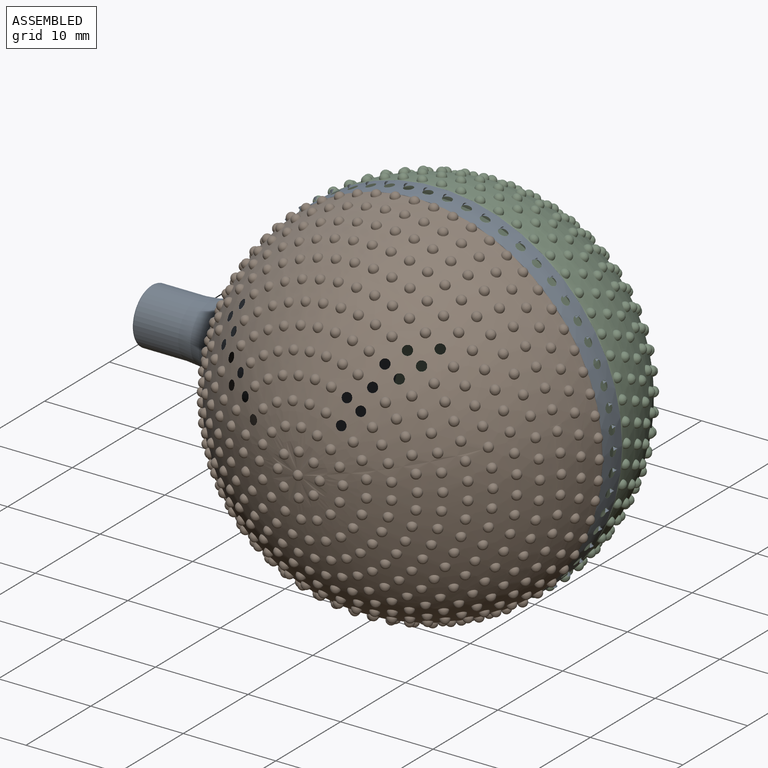
[diagram: assembled view]
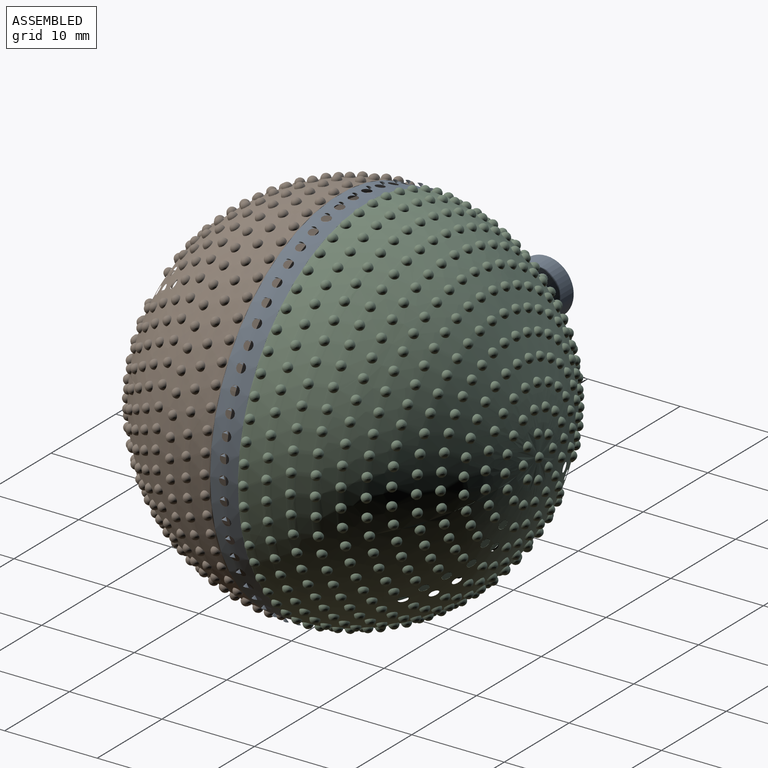
[diagram: assembled view, second angle]
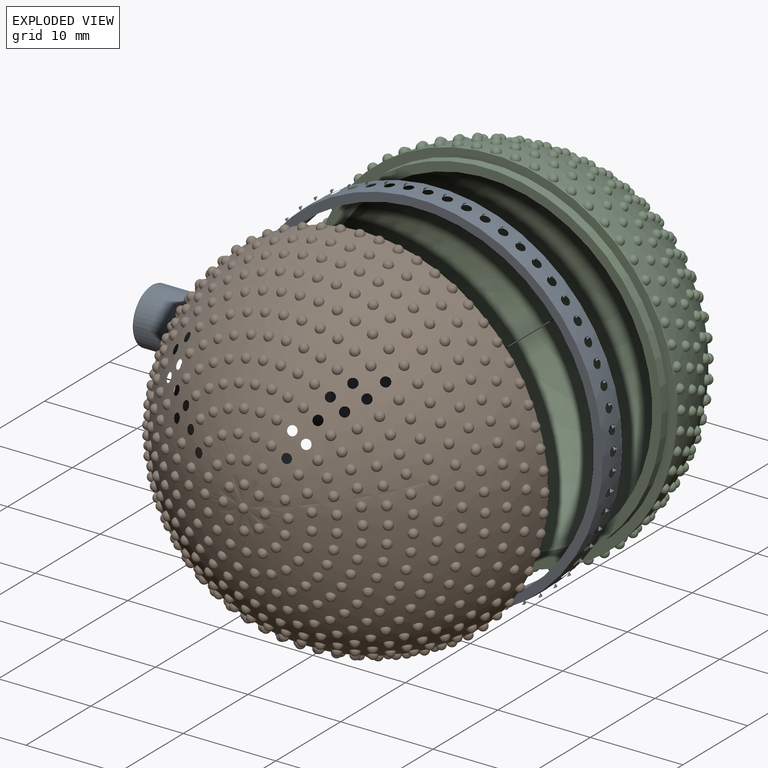
[diagram: exploded view]
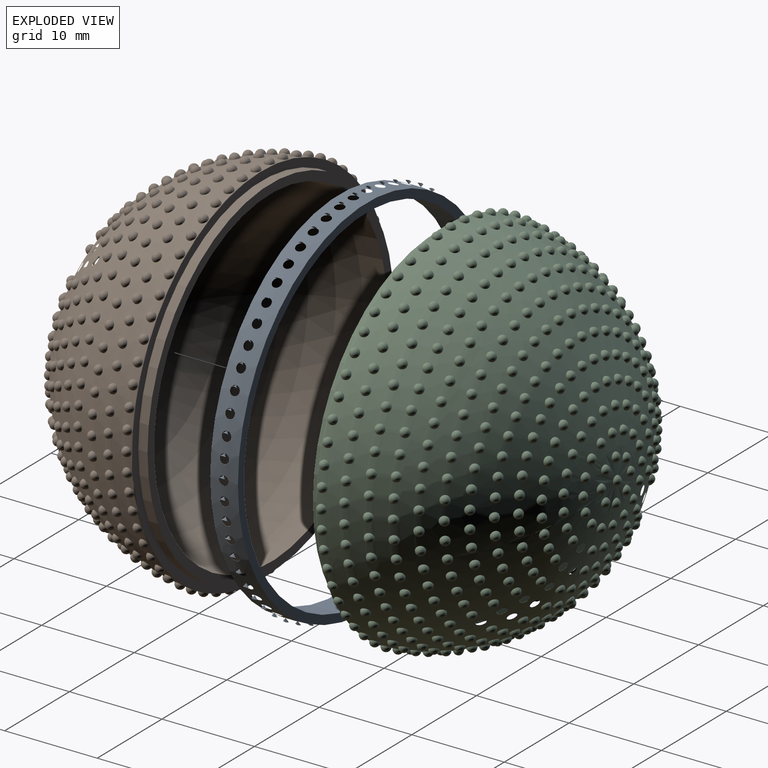
[diagram: exploded view, second angle]
ASSEMBLY  parts=3 mates=2
PART A: 77 faces, bbox 51.6x24.2x41.6 mm
  f0: plane 2.8x0.15mm, normal (0.26,0,-0.97), area 0.2mm2, adj f1,f13
  f1: torus R=10.9mm, axis (1,0,0), area 147.5mm2, adj f0,f2,f3,f10,f13,f14,f72,f73
  f2: plane 40.51x39.87mm, normal (0,-1,0), area 116mm2, adj f1,f9,f12,f13,f70,f71,f72
  f3: plane 40.51x39.87mm, normal (0,1,0), area 116mm2, adj f1,f9,f12,f13,f70,f71,f73
  f4: cylinder r=2mm len=10.8mm, axis (1,0,0), area 135.7mm2, adj f5,f76
  f5: plane 4x4mm, normal (-1,0,0), area 7.7mm2, adj f4,f6
  f6: cylinder r=1.25mm len=10mm, axis (1,0,0), area 78.5mm2, adj f5,f7
  f7: plane 2.5x2.5mm, normal (-1,0,0), area 4.9mm2, adj f6
  f8: plane 10.3x10.3mm, normal (1,0,0), area 83.3mm2, adj f74
  f9: cylinder r=5.35mm len=12.14mm, axis (1,0,0), area 375.2mm2, adj f2,f3,f70,f71,f72,f73,f74
  f10: cylinder r=3mm len=6mm, axis (1,0,0), area 90.5mm2, adj f1,f75
  f11: plane 5.6x5.6mm, normal (-1,0,0), area 9.4mm2, adj f75,f76
  f12: cylinder r=19mm len=38mm, axis (0,1,0), area 295.9mm2, adj f2,f3,f70,f71
  f13: sphere r=20mm, area 302.4mm2, adj f0,f1,f2,f3,f14,f15,f16,f17
  f14: plane 2.8x0.15mm, normal (0.26,0,0.97), area 0.2mm2, adj f1,f13
  f15: sphere r=0.5mm, area 3.1mm2, adj f13
  f16: sphere r=0.5mm, area 3.1mm2, adj f13
  f17: sphere r=0.5mm, area 3.1mm2, adj f13
  f18: sphere r=0.5mm, area 3.1mm2, adj f13
  f19: sphere r=0.5mm, area 3.1mm2, adj f13
  f20: sphere r=0.5mm, area 3.1mm2, adj f13
  f21: sphere r=0.5mm, area 3.1mm2, adj f13
  f22: sphere r=0.5mm, area 3.1mm2, adj f13
  f23: sphere r=0.5mm, area 3.1mm2, adj f13
  f24: sphere r=0.5mm, area 3.1mm2, adj f13
  f25: sphere r=0.5mm, area 3.1mm2, adj f13
  f26: sphere r=0.5mm, area 3.1mm2, adj f13
  f27: sphere r=0.5mm, area 3.1mm2, adj f13
  f28: sphere r=0.5mm, area 3.1mm2, adj f13
  f29: sphere r=0.5mm, area 3.1mm2, adj f13
  f30: sphere r=0.5mm, area 3.1mm2, adj f13
  f31: sphere r=0.5mm, area 3.1mm2, adj f13
  f32: sphere r=0.5mm, area 3.1mm2, adj f13
  f33: sphere r=0.5mm, area 3.1mm2, adj f13
  f34: sphere r=0.5mm, area 3.1mm2, adj f13
  f35: sphere r=0.5mm, area 3.1mm2, adj f13
  f36: sphere r=0.5mm, area 3.1mm2, adj f13
  f37: sphere r=0.5mm, area 3.1mm2, adj f13
  f38: sphere r=0.5mm, area 3.1mm2, adj f13
  f39: sphere r=0.5mm, area 3.1mm2, adj f13
  f40: sphere r=0.5mm, area 3.1mm2, adj f13
  f41: sphere r=0.5mm, area 3.1mm2, adj f13
  f42: sphere r=0.5mm, area 3.1mm2, adj f13
  f43: sphere r=0.5mm, area 3.1mm2, adj f13
  f44: sphere r=0.5mm, area 3.1mm2, adj f13
  f45: sphere r=0.5mm, area 3.1mm2, adj f13
  f46: sphere r=0.5mm, area 3.1mm2, adj f13
  f47: sphere r=0.5mm, area 3.1mm2, adj f13
  f48: sphere r=0.5mm, area 3.1mm2, adj f13
  f49: sphere r=0.5mm, area 3.1mm2, adj f13
  f50: sphere r=0.5mm, area 3.1mm2, adj f13
  f51: sphere r=0.5mm, area 3.1mm2, adj f13
  f52: sphere r=0.5mm, area 3.1mm2, adj f13
  f53: sphere r=0.5mm, area 3.1mm2, adj f13
  f54: sphere r=0.5mm, area 3.1mm2, adj f13
  f55: sphere r=0.5mm, area 3.1mm2, adj f13
  f56: sphere r=0.5mm, area 3.1mm2, adj f13
  f57: sphere r=0.5mm, area 3.1mm2, adj f13
  f58: sphere r=0.5mm, area 3.1mm2, adj f13
  f59: sphere r=0.5mm, area 3.1mm2, adj f13
  f60: sphere r=0.5mm, area 3.1mm2, adj f13
  f61: sphere r=0.5mm, area 3.1mm2, adj f13
  f62: sphere r=0.5mm, area 3.1mm2, adj f13
  f63: sphere r=0.5mm, area 3.1mm2, adj f13
  f64: sphere r=0.5mm, area 3.1mm2, adj f13
  f65: sphere r=0.5mm, area 3.1mm2, adj f13
  f66: sphere r=0.5mm, area 3.1mm2, adj f13
  f67: sphere r=0.5mm, area 3.1mm2, adj f13
  f68: sphere r=0.5mm, area 3.1mm2, adj f13
  f69: sphere r=0.5mm, area 3.1mm2, adj f13
  f70: bspline ~6.46x5.36mm, area 17mm2, adj f2,f3,f9,f12
  f71: bspline ~6.46x5.36mm, area 17mm2, adj f2,f3,f9,f12
  f72: torus R=5.25mm, axis (-1,0,0), area 1.1mm2, adj f1,f2,f9
  f73: torus R=5.25mm, axis (-1,0,0), area 1.1mm2, adj f1,f3,f9
  f74: torus R=5.15mm, axis (-1,0,0), area 10.4mm2, adj f8,f9
  f75: torus R=2.8mm, axis (-1,0,0), area 5.8mm2, adj f10,f11
  f76: torus R=2.2mm, axis (-1,0,0), area 4.1mm2, adj f4,f11
PART B: 547 faces, bbox 40.8x40.8x20 mm
  f0: sphere r=18mm, area 1979.2mm2, adj f4
  f1: sphere r=20mm, area 1899.1mm2, adj f2,f5,f6,f7,f8,f9,f10,f11
  f2: plane 39.89x39.89mm, normal (0,0,-1), area 115.5mm2, adj f1,f3
  f3: cylinder r=19mm len=38mm, axis (0,0,-1), area 119.4mm2, adj f2,f4
  f4: plane 38x38mm, normal (0,0,-1), area 117mm2, adj f0,f3
  f5: sphere r=0.5mm, area 1.6mm2, adj f1
  f6: sphere r=0.5mm, area 1.6mm2, adj f1
  f7: sphere r=0.5mm, area 1.6mm2, adj f1
  f8: sphere r=0.5mm, area 1.6mm2, adj f1
  f9: sphere r=0.5mm, area 1.6mm2, adj f1
  f10: sphere r=0.5mm, area 1.6mm2, adj f1
  f11: sphere r=0.5mm, area 1.6mm2, adj f1
  f12: sphere r=0.5mm, area 1.6mm2, adj f1
  f13: sphere r=0.5mm, area 1.6mm2, adj f1
  f14: sphere r=0.5mm, area 1.6mm2, adj f1
  f15: sphere r=0.5mm, area 1.6mm2, adj f1
  f16: sphere r=0.5mm, area 1.6mm2, adj f1
  f17: sphere r=0.5mm, area 1.6mm2, adj f1
  f18: sphere r=0.5mm, area 1.6mm2, adj f1
  f19: sphere r=0.5mm, area 1.6mm2, adj f1
  f20: sphere r=0.5mm, area 1.6mm2, adj f1
  f21: sphere r=0.5mm, area 1.6mm2, adj f1
  f22: sphere r=0.5mm, area 1.6mm2, adj f1
  f23: sphere r=0.5mm, area 1.6mm2, adj f1
  f24: sphere r=0.5mm, area 1.6mm2, adj f1
  f25: sphere r=0.5mm, area 1.6mm2, adj f1
  f26: sphere r=0.5mm, area 1.6mm2, adj f1
  f27: sphere r=0.5mm, area 1.6mm2, adj f1
  f28: sphere r=0.5mm, area 1.6mm2, adj f1
  f29: sphere r=0.5mm, area 1.6mm2, adj f1
  f30: sphere r=0.5mm, area 1.6mm2, adj f1
  f31: sphere r=0.5mm, area 1.6mm2, adj f1
  f32: sphere r=0.5mm, area 1.6mm2, adj f1
  f33: sphere r=0.5mm, area 1.6mm2, adj f1
  f34: sphere r=0.5mm, area 1.6mm2, adj f1
  f35: sphere r=0.5mm, area 1.6mm2, adj f1
  f36: sphere r=0.5mm, area 1.6mm2, adj f1
  f37: sphere r=0.5mm, area 1.6mm2, adj f1
  f38: sphere r=0.5mm, area 1.6mm2, adj f1
  f39: sphere r=0.5mm, area 1.6mm2, adj f1
  f40: sphere r=0.5mm, area 1.6mm2, adj f1
  f41: sphere r=0.5mm, area 1.6mm2, adj f1
  f42: sphere r=0.5mm, area 1.6mm2, adj f1
  f43: sphere r=0.5mm, area 1.6mm2, adj f1
  f44: sphere r=0.5mm, area 1.6mm2, adj f1
  f45: sphere r=0.5mm, area 1.6mm2, adj f1
  f46: sphere r=0.5mm, area 1.6mm2, adj f1
  f47: sphere r=0.5mm, area 1.6mm2, adj f1
  f48: sphere r=0.5mm, area 1.6mm2, adj f1
  f49: sphere r=0.5mm, area 1.6mm2, adj f1
  f50: sphere r=0.5mm, area 1.6mm2, adj f1
  f51: sphere r=0.5mm, area 1.6mm2, adj f1
  f52: sphere r=0.5mm, area 1.6mm2, adj f1
  f53: sphere r=0.5mm, area 1.6mm2, adj f1
  f54: sphere r=0.5mm, area 1.6mm2, adj f1
  f55: sphere r=0.5mm, area 1.6mm2, adj f1
  f56: sphere r=0.5mm, area 1.6mm2, adj f1
  f57: sphere r=0.5mm, area 1.6mm2, adj f1
  f58: sphere r=0.5mm, area 1.6mm2, adj f1
  f59: sphere r=0.5mm, area 1.6mm2, adj f1
  f60: sphere r=0.5mm, area 1.6mm2, adj f1
  f61: sphere r=0.5mm, area 1.6mm2, adj f1
  f62: sphere r=0.5mm, area 1.6mm2, adj f1
  f63: sphere r=0.5mm, area 1.6mm2, adj f1
  f64: sphere r=0.5mm, area 1.6mm2, adj f1
  f65: sphere r=0.5mm, area 1.6mm2, adj f1
  f66: sphere r=0.5mm, area 1.6mm2, adj f1
  f67: sphere r=0.5mm, area 1.6mm2, adj f1
  f68: sphere r=0.5mm, area 1.6mm2, adj f1
  f69: sphere r=0.5mm, area 1.6mm2, adj f1
  f70: sphere r=0.5mm, area 1.6mm2, adj f1
  f71: sphere r=0.5mm, area 1.6mm2, adj f1
  f72: sphere r=0.5mm, area 1.6mm2, adj f1
  f73: sphere r=0.5mm, area 1.6mm2, adj f1
  f74: sphere r=0.5mm, area 1.6mm2, adj f1
  f75: sphere r=0.5mm, area 1.6mm2, adj f1
  f76: sphere r=0.5mm, area 1.6mm2, adj f1
  f77: sphere r=0.5mm, area 1.6mm2, adj f1
  f78: sphere r=0.5mm, area 1.6mm2, adj f1
  f79: sphere r=0.5mm, area 1.6mm2, adj f1
  f80: sphere r=0.5mm, area 1.6mm2, adj f1
  f81: sphere r=0.5mm, area 1.6mm2, adj f1
  f82: sphere r=0.5mm, area 1.6mm2, adj f1
  f83: sphere r=0.5mm, area 1.6mm2, adj f1
  f84: sphere r=0.5mm, area 1.6mm2, adj f1
  f85: sphere r=0.5mm, area 1.6mm2, adj f1
  f86: sphere r=0.5mm, area 1.6mm2, adj f1
  f87: sphere r=0.5mm, area 1.6mm2, adj f1
  f88: sphere r=0.5mm, area 1.6mm2, adj f1
  f89: sphere r=0.5mm, area 1.6mm2, adj f1
  f90: sphere r=0.5mm, area 1.6mm2, adj f1
  f91: sphere r=0.5mm, area 1.6mm2, adj f1
  f92: sphere r=0.5mm, area 1.6mm2, adj f1
  f93: sphere r=0.5mm, area 1.6mm2, adj f1
  f94: sphere r=0.5mm, area 1.6mm2, adj f1
  f95: sphere r=0.5mm, area 1.6mm2, adj f1
  f96: sphere r=0.5mm, area 1.6mm2, adj f1
  f97: sphere r=0.5mm, area 1.6mm2, adj f1
  f98: sphere r=0.5mm, area 1.6mm2, adj f1
  f99: sphere r=0.5mm, area 1.6mm2, adj f1
  f100: sphere r=0.5mm, area 1.6mm2, adj f1
  f101: sphere r=0.5mm, area 1.6mm2, adj f1
  f102: sphere r=0.5mm, area 1.6mm2, adj f1
  f103: sphere r=0.5mm, area 1.6mm2, adj f1
  f104: sphere r=0.5mm, area 1.6mm2, adj f1
  f105: sphere r=0.5mm, area 1.6mm2, adj f1
  f106: sphere r=0.5mm, area 1.6mm2, adj f1
  f107: sphere r=0.5mm, area 1.6mm2, adj f1
  f108: sphere r=0.5mm, area 1.6mm2, adj f1
  f109: sphere r=0.5mm, area 1.6mm2, adj f1
  f110: sphere r=0.5mm, area 1.6mm2, adj f1
  f111: sphere r=0.5mm, area 1.6mm2, adj f1
  f112: sphere r=0.5mm, area 1.6mm2, adj f1
  f113: sphere r=0.5mm, area 1.6mm2, adj f1
  f114: sphere r=0.5mm, area 1.6mm2, adj f1
  f115: sphere r=0.5mm, area 1.6mm2, adj f1
  f116: sphere r=0.5mm, area 1.6mm2, adj f1
  f117: sphere r=0.5mm, area 1.6mm2, adj f1
  f118: sphere r=0.5mm, area 1.6mm2, adj f1
  f119: sphere r=0.5mm, area 1.6mm2, adj f1
  f120: sphere r=0.5mm, area 1.6mm2, adj f1
  f121: sphere r=0.5mm, area 1.6mm2, adj f1
  f122: sphere r=0.5mm, area 1.6mm2, adj f1
  f123: sphere r=0.5mm, area 1.6mm2, adj f1
  f124: sphere r=0.5mm, area 1.6mm2, adj f1
  f125: sphere r=0.5mm, area 1.6mm2, adj f1
  f126: sphere r=0.5mm, area 1.6mm2, adj f1
  f127: sphere r=0.5mm, area 1.6mm2, adj f1
  f128: sphere r=0.5mm, area 1.6mm2, adj f1
  f129: sphere r=0.5mm, area 1.6mm2, adj f1
  f130: sphere r=0.5mm, area 1.6mm2, adj f1
  f131: sphere r=0.5mm, area 1.6mm2, adj f1
  f132: sphere r=0.5mm, area 1.6mm2, adj f1
  f133: sphere r=0.5mm, area 1.6mm2, adj f1
  f134: sphere r=0.5mm, area 1.6mm2, adj f1
  f135: sphere r=0.5mm, area 1.6mm2, adj f1
  f136: sphere r=0.5mm, area 1.6mm2, adj f1
  f137: sphere r=0.5mm, area 1.6mm2, adj f1
  f138: sphere r=0.5mm, area 1.6mm2, adj f1
  f139: sphere r=0.5mm, area 1.6mm2, adj f1
  f140: sphere r=0.5mm, area 1.6mm2, adj f1
  f141: sphere r=0.5mm, area 1.6mm2, adj f1
  f142: sphere r=0.5mm, area 1.6mm2, adj f1
  f143: sphere r=0.5mm, area 1.6mm2, adj f1
  f144: sphere r=0.5mm, area 1.6mm2, adj f1
  f145: sphere r=0.5mm, area 1.6mm2, adj f1
  f146: sphere r=0.5mm, area 1.6mm2, adj f1
  f147: sphere r=0.5mm, area 1.6mm2, adj f1
  f148: sphere r=0.5mm, area 1.6mm2, adj f1
  f149: sphere r=0.5mm, area 1.6mm2, adj f1
  f150: sphere r=0.5mm, area 1.6mm2, adj f1
  f151: sphere r=0.5mm, area 1.6mm2, adj f1
  f152: sphere r=0.5mm, area 1.6mm2, adj f1
  f153: sphere r=0.5mm, area 1.6mm2, adj f1
  f154: sphere r=0.5mm, area 1.6mm2, adj f1
  f155: sphere r=0.5mm, area 1.6mm2, adj f1
  f156: sphere r=0.5mm, area 1.6mm2, adj f1
  f157: sphere r=0.5mm, area 1.6mm2, adj f1
  f158: sphere r=0.5mm, area 1.6mm2, adj f1
  f159: sphere r=0.5mm, area 1.6mm2, adj f1
  f160: sphere r=0.5mm, area 1.6mm2, adj f1
  f161: sphere r=0.5mm, area 1.6mm2, adj f1
  f162: sphere r=0.5mm, area 1.6mm2, adj f1
  f163: sphere r=0.5mm, area 1.6mm2, adj f1
  f164: sphere r=0.5mm, area 1.6mm2, adj f1
  f165: sphere r=0.5mm, area 1.6mm2, adj f1
  f166: sphere r=0.5mm, area 1.6mm2, adj f1
  f167: sphere r=0.5mm, area 1.6mm2, adj f1
  f168: sphere r=0.5mm, area 1.6mm2, adj f1
  f169: sphere r=0.5mm, area 1.6mm2, adj f1
  f170: sphere r=0.5mm, area 1.6mm2, adj f1
  f171: sphere r=0.5mm, area 1.6mm2, adj f1
  f172: sphere r=0.5mm, area 1.6mm2, adj f1
  f173: sphere r=0.5mm, area 1.6mm2, adj f1
  f174: sphere r=0.5mm, area 1.6mm2, adj f1
  f175: sphere r=0.5mm, area 1.6mm2, adj f1
  f176: sphere r=0.5mm, area 1.6mm2, adj f1
  f177: sphere r=0.5mm, area 1.6mm2, adj f1
  f178: sphere r=0.5mm, area 1.6mm2, adj f1
  f179: sphere r=0.5mm, area 1.6mm2, adj f1
  f180: sphere r=0.5mm, area 1.6mm2, adj f1
  f181: sphere r=0.5mm, area 1.6mm2, adj f1
  f182: sphere r=0.5mm, area 1.6mm2, adj f1
  f183: sphere r=0.5mm, area 1.6mm2, adj f1
  f184: sphere r=0.5mm, area 1.6mm2, adj f1
  f185: sphere r=0.5mm, area 1.6mm2, adj f1
  f186: sphere r=0.5mm, area 1.6mm2, adj f1
  f187: sphere r=0.5mm, area 1.6mm2, adj f1
  f188: sphere r=0.5mm, area 1.6mm2, adj f1
  f189: sphere r=0.5mm, area 1.6mm2, adj f1
  f190: sphere r=0.5mm, area 1.6mm2, adj f1
  f191: sphere r=0.5mm, area 1.6mm2, adj f1
  f192: sphere r=0.5mm, area 1.6mm2, adj f1
  f193: sphere r=0.5mm, area 1.6mm2, adj f1
  f194: sphere r=0.5mm, area 1.6mm2, adj f1
  f195: sphere r=0.5mm, area 1.6mm2, adj f1
  f196: sphere r=0.5mm, area 1.6mm2, adj f1
  f197: sphere r=0.5mm, area 1.6mm2, adj f1
  f198: sphere r=0.5mm, area 1.6mm2, adj f1
  f199: sphere r=0.5mm, area 1.6mm2, adj f1
  f200: sphere r=0.5mm, area 1.6mm2, adj f1
  f201: sphere r=0.5mm, area 1.6mm2, adj f1
  f202: sphere r=0.5mm, area 1.6mm2, adj f1
  f203: sphere r=0.5mm, area 1.6mm2, adj f1
  f204: sphere r=0.5mm, area 1.6mm2, adj f1
  f205: sphere r=0.5mm, area 1.6mm2, adj f1
  f206: sphere r=0.5mm, area 1.6mm2, adj f1
  f207: sphere r=0.5mm, area 1.6mm2, adj f1
  f208: sphere r=0.5mm, area 1.6mm2, adj f1
  f209: sphere r=0.5mm, area 1.6mm2, adj f1
  f210: sphere r=0.5mm, area 1.6mm2, adj f1
  f211: sphere r=0.5mm, area 1.6mm2, adj f1
  f212: sphere r=0.5mm, area 1.6mm2, adj f1
  f213: sphere r=0.5mm, area 1.6mm2, adj f1
  f214: sphere r=0.5mm, area 1.6mm2, adj f1
  f215: sphere r=0.5mm, area 1.6mm2, adj f1
  f216: sphere r=0.5mm, area 1.6mm2, adj f1
  f217: sphere r=0.5mm, area 1.6mm2, adj f1
  f218: sphere r=0.5mm, area 1.6mm2, adj f1
  f219: sphere r=0.5mm, area 1.6mm2, adj f1
  f220: sphere r=0.5mm, area 1.6mm2, adj f1
  f221: sphere r=0.5mm, area 1.6mm2, adj f1
  f222: sphere r=0.5mm, area 1.6mm2, adj f1
  f223: sphere r=0.5mm, area 1.6mm2, adj f1
  f224: sphere r=0.5mm, area 1.6mm2, adj f1
  f225: sphere r=0.5mm, area 1.6mm2, adj f1
  f226: sphere r=0.5mm, area 1.6mm2, adj f1
  f227: sphere r=0.5mm, area 1.6mm2, adj f1
  f228: sphere r=0.5mm, area 1.6mm2, adj f1
  f229: sphere r=0.5mm, area 1.6mm2, adj f1
  f230: sphere r=0.5mm, area 1.6mm2, adj f1
  f231: sphere r=0.5mm, area 1.6mm2, adj f1
  f232: sphere r=0.5mm, area 1.6mm2, adj f1
  f233: sphere r=0.5mm, area 1.6mm2, adj f1
  f234: sphere r=0.5mm, area 1.6mm2, adj f1
  f235: sphere r=0.5mm, area 1.6mm2, adj f1
  f236: sphere r=0.5mm, area 1.6mm2, adj f1
  f237: sphere r=0.5mm, area 1.6mm2, adj f1
  f238: sphere r=0.5mm, area 1.6mm2, adj f1
  f239: sphere r=0.5mm, area 1.6mm2, adj f1
  f240: sphere r=0.5mm, area 1.6mm2, adj f1
  f241: sphere r=0.5mm, area 1.6mm2, adj f1
  f242: sphere r=0.5mm, area 1.6mm2, adj f1
  f243: sphere r=0.5mm, area 1.6mm2, adj f1
  f244: sphere r=0.5mm, area 1.6mm2, adj f1
  f245: sphere r=0.5mm, area 1.6mm2, adj f1
  f246: sphere r=0.5mm, area 1.6mm2, adj f1
  f247: sphere r=0.5mm, area 1.6mm2, adj f1
  f248: sphere r=0.5mm, area 1.6mm2, adj f1
  f249: sphere r=0.5mm, area 1.6mm2, adj f1
  f250: sphere r=0.5mm, area 1.6mm2, adj f1
  f251: sphere r=0.5mm, area 1.6mm2, adj f1
  f252: sphere r=0.5mm, area 1.6mm2, adj f1
  f253: sphere r=0.5mm, area 1.6mm2, adj f1
  f254: sphere r=0.5mm, area 1.6mm2, adj f1
  f255: sphere r=0.5mm, area 1.6mm2, adj f1
  f256: sphere r=0.5mm, area 1.6mm2, adj f1
  f257: sphere r=0.5mm, area 1.6mm2, adj f1
  f258: sphere r=0.5mm, area 1.6mm2, adj f1
  f259: sphere r=0.5mm, area 1.6mm2, adj f1
  f260: sphere r=0.5mm, area 1.6mm2, adj f1
  f261: sphere r=0.5mm, area 1.6mm2, adj f1
  f262: sphere r=0.5mm, area 1.6mm2, adj f1
  f263: sphere r=0.5mm, area 1.6mm2, adj f1
  f264: sphere r=0.5mm, area 1.6mm2, adj f1
  f265: sphere r=0.5mm, area 1.6mm2, adj f1
  f266: sphere r=0.5mm, area 1.6mm2, adj f1
  f267: sphere r=0.5mm, area 1.6mm2, adj f1
  f268: sphere r=0.5mm, area 1.6mm2, adj f1
  f269: sphere r=0.5mm, area 1.6mm2, adj f1
  f270: sphere r=0.5mm, area 1.6mm2, adj f1
  f271: sphere r=0.5mm, area 1.6mm2, adj f1
  f272: sphere r=0.5mm, area 1.6mm2, adj f1
  f273: sphere r=0.5mm, area 1.6mm2, adj f1
  f274: sphere r=0.5mm, area 1.6mm2, adj f1
  f275: sphere r=0.5mm, area 1.6mm2, adj f1
  f276: sphere r=0.5mm, area 1.6mm2, adj f1
  f277: sphere r=0.5mm, area 1.6mm2, adj f1
  f278: sphere r=0.5mm, area 1.6mm2, adj f1
  f279: sphere r=0.5mm, area 1.6mm2, adj f1
  f280: sphere r=0.5mm, area 1.6mm2, adj f1
  f281: sphere r=0.5mm, area 1.6mm2, adj f1
  f282: sphere r=0.5mm, area 1.6mm2, adj f1
  f283: sphere r=0.5mm, area 1.6mm2, adj f1
  f284: sphere r=0.5mm, area 1.6mm2, adj f1
  f285: sphere r=0.5mm, area 1.6mm2, adj f1
  f286: sphere r=0.5mm, area 1.6mm2, adj f1
  f287: sphere r=0.5mm, area 1.6mm2, adj f1
  f288: sphere r=0.5mm, area 1.6mm2, adj f1
  f289: sphere r=0.5mm, area 1.6mm2, adj f1
  f290: sphere r=0.5mm, area 1.6mm2, adj f1
  f291: sphere r=0.5mm, area 1.6mm2, adj f1
  f292: sphere r=0.5mm, area 1.6mm2, adj f1
  f293: sphere r=0.5mm, area 1.6mm2, adj f1
  f294: sphere r=0.5mm, area 1.6mm2, adj f1
  f295: sphere r=0.5mm, area 1.6mm2, adj f1
  f296: sphere r=0.5mm, area 1.6mm2, adj f1
  f297: sphere r=0.5mm, area 1.6mm2, adj f1
  f298: sphere r=0.5mm, area 1.6mm2, adj f1
  f299: sphere r=0.5mm, area 1.6mm2, adj f1
  f300: sphere r=0.5mm, area 1.6mm2, adj f1
  f301: sphere r=0.5mm, area 1.6mm2, adj f1
  f302: sphere r=0.5mm, area 1.6mm2, adj f1
  f303: sphere r=0.5mm, area 1.6mm2, adj f1
  f304: sphere r=0.5mm, area 1.6mm2, adj f1
  f305: sphere r=0.5mm, area 1.6mm2, adj f1
  f306: sphere r=0.5mm, area 1.6mm2, adj f1
  f307: sphere r=0.5mm, area 1.6mm2, adj f1
  f308: sphere r=0.5mm, area 1.6mm2, adj f1
  f309: sphere r=0.5mm, area 1.6mm2, adj f1
  f310: sphere r=0.5mm, area 1.6mm2, adj f1
  f311: sphere r=0.5mm, area 1.6mm2, adj f1
  f312: sphere r=0.5mm, area 1.6mm2, adj f1
  f313: sphere r=0.5mm, area 1.6mm2, adj f1
  f314: sphere r=0.5mm, area 1.6mm2, adj f1
  f315: sphere r=0.5mm, area 1.6mm2, adj f1
  f316: sphere r=0.5mm, area 1.6mm2, adj f1
  f317: sphere r=0.5mm, area 1.6mm2, adj f1
  f318: sphere r=0.5mm, area 1.6mm2, adj f1
  f319: sphere r=0.5mm, area 1.6mm2, adj f1
  f320: sphere r=0.5mm, area 1.6mm2, adj f1
  f321: sphere r=0.5mm, area 1.6mm2, adj f1
  f322: sphere r=0.5mm, area 1.6mm2, adj f1
  f323: sphere r=0.5mm, area 1.6mm2, adj f1
  f324: sphere r=0.5mm, area 1.6mm2, adj f1
  f325: sphere r=0.5mm, area 1.6mm2, adj f1
  f326: sphere r=0.5mm, area 1.6mm2, adj f1
  f327: sphere r=0.5mm, area 1.6mm2, adj f1
  f328: sphere r=0.5mm, area 1.6mm2, adj f1
  f329: sphere r=0.5mm, area 1.6mm2, adj f1
  f330: sphere r=0.5mm, area 1.6mm2, adj f1
  f331: sphere r=0.5mm, area 1.6mm2, adj f1
  f332: sphere r=0.5mm, area 1.6mm2, adj f1
  f333: sphere r=0.5mm, area 1.6mm2, adj f1
  f334: sphere r=0.5mm, area 1.6mm2, adj f1
  f335: sphere r=0.5mm, area 1.6mm2, adj f1
  f336: sphere r=0.5mm, area 1.6mm2, adj f1
  f337: sphere r=0.5mm, area 1.6mm2, adj f1
  f338: sphere r=0.5mm, area 1.6mm2, adj f1
  f339: sphere r=0.5mm, area 1.6mm2, adj f1
  f340: sphere r=0.5mm, area 1.6mm2, adj f1
  f341: sphere r=0.5mm, area 1.6mm2, adj f1
  f342: sphere r=0.5mm, area 1.6mm2, adj f1
  f343: sphere r=0.5mm, area 1.6mm2, adj f1
  f344: sphere r=0.5mm, area 1.6mm2, adj f1
  f345: sphere r=0.5mm, area 1.6mm2, adj f1
  f346: sphere r=0.5mm, area 1.6mm2, adj f1
  f347: sphere r=0.5mm, area 1.6mm2, adj f1
  f348: sphere r=0.5mm, area 1.6mm2, adj f1
  f349: sphere r=0.5mm, area 1.6mm2, adj f1
  f350: sphere r=0.5mm, area 1.6mm2, adj f1
  f351: sphere r=0.5mm, area 1.6mm2, adj f1
  f352: sphere r=0.5mm, area 1.6mm2, adj f1
  f353: sphere r=0.5mm, area 1.6mm2, adj f1
  f354: sphere r=0.5mm, area 1.6mm2, adj f1
  f355: sphere r=0.5mm, area 1.6mm2, adj f1
  f356: sphere r=0.5mm, area 1.6mm2, adj f1
  f357: sphere r=0.5mm, area 1.6mm2, adj f1
  f358: sphere r=0.5mm, area 1.6mm2, adj f1
  f359: sphere r=0.5mm, area 1.6mm2, adj f1
  f360: sphere r=0.5mm, area 1.6mm2, adj f1
  f361: sphere r=0.5mm, area 1.6mm2, adj f1
  f362: sphere r=0.5mm, area 1.6mm2, adj f1
  f363: sphere r=0.5mm, area 1.6mm2, adj f1
  f364: sphere r=0.5mm, area 1.6mm2, adj f1
  f365: sphere r=0.5mm, area 1.6mm2, adj f1
  f366: sphere r=0.5mm, area 1.6mm2, adj f1
  f367: sphere r=0.5mm, area 1.6mm2, adj f1
  f368: sphere r=0.5mm, area 1.6mm2, adj f1
  f369: sphere r=0.5mm, area 1.6mm2, adj f1
  f370: sphere r=0.5mm, area 1.6mm2, adj f1
  f371: sphere r=0.5mm, area 1.6mm2, adj f1
  f372: sphere r=0.5mm, area 1.6mm2, adj f1
  f373: sphere r=0.5mm, area 1.6mm2, adj f1
  f374: sphere r=0.5mm, area 1.6mm2, adj f1
  f375: sphere r=0.5mm, area 1.6mm2, adj f1
  f376: sphere r=0.5mm, area 1.6mm2, adj f1
  f377: sphere r=0.5mm, area 1.6mm2, adj f1
  f378: sphere r=0.5mm, area 1.6mm2, adj f1
  f379: sphere r=0.5mm, area 1.6mm2, adj f1
  f380: sphere r=0.5mm, area 1.6mm2, adj f1
  f381: sphere r=0.5mm, area 1.6mm2, adj f1
  f382: sphere r=0.5mm, area 1.6mm2, adj f1
  f383: sphere r=0.5mm, area 1.6mm2, adj f1
  f384: sphere r=0.5mm, area 1.6mm2, adj f1
  f385: sphere r=0.5mm, area 1.6mm2, adj f1
  f386: sphere r=0.5mm, area 1.6mm2, adj f1
  f387: sphere r=0.5mm, area 1.6mm2, adj f1
  f388: sphere r=0.5mm, area 1.6mm2, adj f1
  f389: sphere r=0.5mm, area 1.6mm2, adj f1
  f390: sphere r=0.5mm, area 1.6mm2, adj f1
  f391: sphere r=0.5mm, area 1.6mm2, adj f1
  f392: sphere r=0.5mm, area 1.6mm2, adj f1
  f393: sphere r=0.5mm, area 1.6mm2, adj f1
  f394: sphere r=0.5mm, area 1.6mm2, adj f1
  f395: sphere r=0.5mm, area 1.6mm2, adj f1
  f396: sphere r=0.5mm, area 1.6mm2, adj f1
  f397: sphere r=0.5mm, area 1.6mm2, adj f1
  f398: sphere r=0.5mm, area 1.6mm2, adj f1
  f399: sphere r=0.5mm, area 1.6mm2, adj f1
  f400: sphere r=0.5mm, area 1.6mm2, adj f1
  f401: sphere r=0.5mm, area 1.6mm2, adj f1
  f402: sphere r=0.5mm, area 1.6mm2, adj f1
  f403: sphere r=0.5mm, area 1.6mm2, adj f1
  f404: sphere r=0.5mm, area 1.6mm2, adj f1
  f405: sphere r=0.5mm, area 1.6mm2, adj f1
  f406: sphere r=0.5mm, area 1.6mm2, adj f1
  f407: sphere r=0.5mm, area 1.6mm2, adj f1
  f408: sphere r=0.5mm, area 1.6mm2, adj f1
  f409: sphere r=0.5mm, area 1.6mm2, adj f1
  f410: sphere r=0.5mm, area 1.6mm2, adj f1
  f411: sphere r=0.5mm, area 1.6mm2, adj f1
  f412: sphere r=0.5mm, area 1.6mm2, adj f1
  f413: sphere r=0.5mm, area 1.6mm2, adj f1
  f414: sphere r=0.5mm, area 1.6mm2, adj f1
  f415: sphere r=0.5mm, area 1.6mm2, adj f1
  f416: sphere r=0.5mm, area 1.6mm2, adj f1
  f417: sphere r=0.5mm, area 1.6mm2, adj f1
  f418: sphere r=0.5mm, area 1.6mm2, adj f1
  f419: sphere r=0.5mm, area 1.6mm2, adj f1
  f420: sphere r=0.5mm, area 1.6mm2, adj f1
  f421: sphere r=0.5mm, area 1.6mm2, adj f1
  f422: sphere r=0.5mm, area 1.6mm2, adj f1
  f423: sphere r=0.5mm, area 1.6mm2, adj f1
  f424: sphere r=0.5mm, area 1.6mm2, adj f1
  f425: sphere r=0.5mm, area 1.6mm2, adj f1
  f426: sphere r=0.5mm, area 1.6mm2, adj f1
  f427: sphere r=0.5mm, area 1.6mm2, adj f1
  f428: sphere r=0.5mm, area 1.6mm2, adj f1
  f429: sphere r=0.5mm, area 1.6mm2, adj f1
  f430: sphere r=0.5mm, area 1.6mm2, adj f1
  f431: sphere r=0.5mm, area 1.6mm2, adj f1
  f432: sphere r=0.5mm, area 1.6mm2, adj f1
  f433: sphere r=0.5mm, area 1.6mm2, adj f1
  f434: sphere r=0.5mm, area 1.6mm2, adj f1
  f435: sphere r=0.5mm, area 1.6mm2, adj f1
  f436: sphere r=0.5mm, area 1.6mm2, adj f1
  f437: sphere r=0.5mm, area 1.6mm2, adj f1
  f438: sphere r=0.5mm, area 1.6mm2, adj f1
  f439: sphere r=0.5mm, area 1.6mm2, adj f1
  f440: sphere r=0.5mm, area 1.6mm2, adj f1
  f441: sphere r=0.5mm, area 1.6mm2, adj f1
  f442: sphere r=0.5mm, area 1.6mm2, adj f1
  f443: sphere r=0.5mm, area 1.6mm2, adj f1
  f444: sphere r=0.5mm, area 1.6mm2, adj f1
  f445: sphere r=0.5mm, area 1.6mm2, adj f1
  f446: sphere r=0.5mm, area 1.6mm2, adj f1
  f447: sphere r=0.5mm, area 1.6mm2, adj f1
  f448: sphere r=0.5mm, area 1.6mm2, adj f1
  f449: sphere r=0.5mm, area 1.6mm2, adj f1
  f450: sphere r=0.5mm, area 1.6mm2, adj f1
  f451: sphere r=0.5mm, area 1.6mm2, adj f1
  f452: sphere r=0.5mm, area 1.6mm2, adj f1
  f453: sphere r=0.5mm, area 1.6mm2, adj f1
  f454: sphere r=0.5mm, area 1.6mm2, adj f1
  f455: sphere r=0.5mm, area 1.6mm2, adj f1
  f456: sphere r=0.5mm, area 1.6mm2, adj f1
  f457: sphere r=0.5mm, area 1.6mm2, adj f1
  f458: sphere r=0.5mm, area 1.6mm2, adj f1
  f459: sphere r=0.5mm, area 1.6mm2, adj f1
  f460: sphere r=0.5mm, area 1.6mm2, adj f1
  f461: sphere r=0.5mm, area 1.6mm2, adj f1
  f462: sphere r=0.5mm, area 1.6mm2, adj f1
  f463: sphere r=0.5mm, area 1.6mm2, adj f1
  f464: sphere r=0.5mm, area 1.6mm2, adj f1
  f465: sphere r=0.5mm, area 1.6mm2, adj f1
  f466: sphere r=0.5mm, area 1.6mm2, adj f1
  f467: sphere r=0.5mm, area 1.6mm2, adj f1
  f468: sphere r=0.5mm, area 1.6mm2, adj f1
  f469: sphere r=0.5mm, area 1.6mm2, adj f1
  f470: sphere r=0.5mm, area 1.6mm2, adj f1
  f471: sphere r=0.5mm, area 1.6mm2, adj f1
  f472: sphere r=0.5mm, area 1.6mm2, adj f1
  f473: sphere r=0.5mm, area 1.6mm2, adj f1
  f474: sphere r=0.5mm, area 1.6mm2, adj f1
  f475: sphere r=0.5mm, area 1.6mm2, adj f1
  f476: sphere r=0.5mm, area 1.6mm2, adj f1
  f477: sphere r=0.5mm, area 1.6mm2, adj f1
  f478: sphere r=0.5mm, area 1.6mm2, adj f1
  f479: sphere r=0.5mm, area 1.6mm2, adj f1
  f480: sphere r=0.5mm, area 1.6mm2, adj f1
  f481: sphere r=0.5mm, area 1.6mm2, adj f1
  f482: sphere r=0.5mm, area 1.6mm2, adj f1
  f483: sphere r=0.5mm, area 1.6mm2, adj f1
  f484: sphere r=0.5mm, area 1.6mm2, adj f1
  f485: sphere r=0.5mm, area 1.6mm2, adj f1
  f486: sphere r=0.5mm, area 1.6mm2, adj f1
  f487: sphere r=0.5mm, area 1.6mm2, adj f1
  f488: sphere r=0.5mm, area 1.6mm2, adj f1
  f489: sphere r=0.5mm, area 1.6mm2, adj f1
  f490: sphere r=0.5mm, area 1.6mm2, adj f1
  f491: sphere r=0.5mm, area 1.6mm2, adj f1
  f492: sphere r=0.5mm, area 1.6mm2, adj f1
  f493: sphere r=0.5mm, area 1.6mm2, adj f1
  f494: sphere r=0.5mm, area 1.6mm2, adj f1
  f495: sphere r=0.5mm, area 1.6mm2, adj f1
  f496: sphere r=0.5mm, area 1.6mm2, adj f1
  f497: sphere r=0.5mm, area 1.6mm2, adj f1
  f498: sphere r=0.5mm, area 1.6mm2, adj f1
  f499: sphere r=0.5mm, area 1.6mm2, adj f1
  f500: sphere r=0.5mm, area 1.6mm2, adj f1
  f501: sphere r=0.5mm, area 1.6mm2, adj f1
  f502: sphere r=0.5mm, area 1.6mm2, adj f1
  f503: sphere r=0.5mm, area 1.6mm2, adj f1
  f504: sphere r=0.5mm, area 1.6mm2, adj f1
  f505: sphere r=0.5mm, area 1.6mm2, adj f1
  f506: sphere r=0.5mm, area 1.6mm2, adj f1
  f507: sphere r=0.5mm, area 1.6mm2, adj f1
  f508: sphere r=0.5mm, area 1.6mm2, adj f1
  f509: sphere r=0.5mm, area 1.6mm2, adj f1
  f510: sphere r=0.5mm, area 1.6mm2, adj f1
  f511: sphere r=0.5mm, area 1.6mm2, adj f1
  f512: sphere r=0.5mm, area 1.6mm2, adj f1
  f513: sphere r=0.5mm, area 1.6mm2, adj f1
  f514: sphere r=0.5mm, area 1.6mm2, adj f1
  f515: sphere r=0.5mm, area 1.6mm2, adj f1
  f516: sphere r=0.5mm, area 1.6mm2, adj f1
  f517: sphere r=0.5mm, area 1.6mm2, adj f1
  f518: sphere r=0.5mm, area 1.6mm2, adj f1
  f519: sphere r=0.5mm, area 1.6mm2, adj f1
  f520: sphere r=0.5mm, area 1.6mm2, adj f1
  f521: sphere r=0.5mm, area 1.6mm2, adj f1
  f522: sphere r=0.5mm, area 1.6mm2, adj f1
  f523: sphere r=0.5mm, area 1.6mm2, adj f1
  f524: sphere r=0.5mm, area 1.6mm2, adj f1
  f525: sphere r=0.5mm, area 1.6mm2, adj f1
  f526: sphere r=0.5mm, area 1.6mm2, adj f1
  f527: sphere r=0.5mm, area 1.6mm2, adj f1
  f528: sphere r=0.5mm, area 1.6mm2, adj f1
  f529: sphere r=0.5mm, area 1.6mm2, adj f1
  f530: sphere r=0.5mm, area 1.6mm2, adj f1
  f531: sphere r=0.5mm, area 1.6mm2, adj f1
  f532: sphere r=0.5mm, area 1.6mm2, adj f1
  f533: sphere r=0.5mm, area 1.6mm2, adj f1
  f534: sphere r=0.5mm, area 1.6mm2, adj f1
  f535: sphere r=0.5mm, area 1.6mm2, adj f1
  f536: sphere r=0.5mm, area 1.6mm2, adj f1
  f537: sphere r=0.5mm, area 1.6mm2, adj f1
  f538: sphere r=0.5mm, area 1.6mm2, adj f1
  f539: sphere r=0.5mm, area 1.6mm2, adj f1
  f540: sphere r=0.5mm, area 1.6mm2, adj f1
  f541: sphere r=0.5mm, area 1.6mm2, adj f1
  f542: sphere r=0.5mm, area 1.6mm2, adj f1
  f543: sphere r=0.5mm, area 1.6mm2, adj f1
  f544: sphere r=0.5mm, area 1.6mm2, adj f1
  f545: sphere r=0.5mm, area 1.6mm2, adj f1
  f546: sphere r=0.5mm, area 1.6mm2, adj f1
PART C: same geometry as B
PLACE A rot(axis=(1,0,0),180deg) t=(33.81,-137.66,80.29)mm
PLACE B rot(axis=(1,0,0),90deg) t=(33.81,-137.66,80.29)mm
PLACE C rot(axis=(-1,0,0),90deg) t=(33.81,-137.66,80.29)mm
MATE fastened B.f3 <-> A.f12  axis (0,1,0) through (33.81,-139.16,80.29)mm
MATE fastened C.f3 <-> A.f12  axis (0,-1,0) through (33.81,-136.16,80.29)mm
